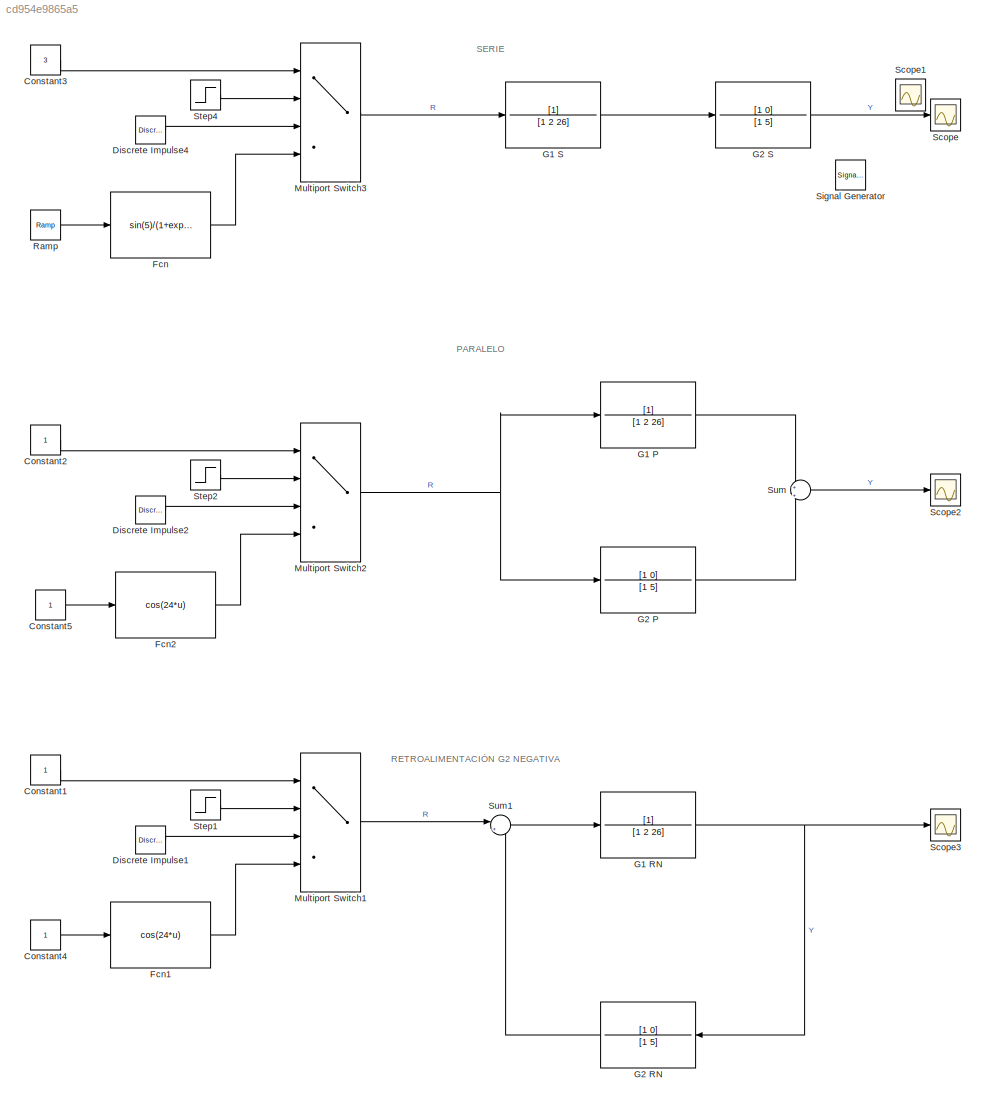
MODEL slx_cd954e9865a5
KIND model
CONFIG AbsTol = auto
CONFIG EnableMultiTasking = off
CONFIG FixedStep = auto
CONFIG MaxStep = auto
CONFIG MinStep = auto
CONFIG RelTol = 1e-3
CONFIG SampleTimeConstraint = Unconstrained
CONFIG Solver = VariableStepAuto
CONFIG SolverName = VariableStepAuto
CONFIG StartTime = 0
CONFIG StopTime = 8
BLOCK [Constant] Constant1
BLOCK [Constant] Constant2
BLOCK [Constant] Constant3
  Value = 3
BLOCK [Constant] Constant4
BLOCK [Constant] Constant5
BLOCK [Reference] Discrete Impulse1  REF=dspsrcs4/Discrete 
Impulse
  Ports = [0, 1]
  SourceBlock = dspsrcs4/Discrete \nImpulse
  SourceProductBaseCode = DS
  SourceProductName = DSP System Toolbox
  SourceType = Discrete Impulse
BLOCK [Reference] Discrete Impulse2  REF=dspsrcs4/Discrete 
Impulse
  Ports = [0, 1]
  SourceBlock = dspsrcs4/Discrete \nImpulse
  SourceProductBaseCode = DS
  SourceProductName = DSP System Toolbox
  SourceType = Discrete Impulse
BLOCK [Reference] Discrete Impulse4  REF=dspsrcs4/Discrete 
Impulse
  Ports = [0, 1]
  SourceBlock = dspsrcs4/Discrete \nImpulse
  SourceProductBaseCode = DS
  SourceProductName = DSP System Toolbox
  SourceType = Discrete Impulse
BLOCK [Fcn] Fcn
  Expr = sin(5)/(1+exp(u))
BLOCK [Fcn] Fcn1
  Expr = cos(24*u)
BLOCK [Fcn] Fcn2
  Expr = cos(24*u)
BLOCK [TransferFcn] G1 P
  Denominator = [1 2 26]
BLOCK [TransferFcn] G1 RN
  Denominator = [1 2 26]
BLOCK [TransferFcn] G1 S
  Denominator = [1 2 26]
BLOCK [TransferFcn] G2 P
  Denominator = [1 5]
  Numerator = [1 0]
BLOCK [TransferFcn] G2 RN
  Denominator = [1 5]
  Numerator = [1 0]
BLOCK [TransferFcn] G2 S
  Denominator = [1 5]
  Numerator = [1 0]
BLOCK [MultiPortSwitch] Multiport Switch1
  DataPortOrder = Specify indices
  InputSameDT = off
  Ports = [4, 1]
  SaturateOnIntegerOverflow = off
BLOCK [MultiPortSwitch] Multiport Switch2
  DataPortOrder = Specify indices
  InputSameDT = off
  Ports = [4, 1]
  SaturateOnIntegerOverflow = off
BLOCK [MultiPortSwitch] Multiport Switch3
  DataPortOrder = Specify indices
  InputSameDT = off
  Ports = [4, 1]
  SaturateOnIntegerOverflow = off
BLOCK [Reference] Ramp  REF=simulink/Sources/Ramp
  Ports = [0, 1]
  SourceBlock = simulink/Sources/Ramp
  SourceProductBaseCode = SL
  SourceProductName = Simulink
  SourceType = Ramp
BLOCK [Scope] Scope
  Floating = off
  NumInputPorts = 1
  Ports = [1]
  ScopeSpecificationString = Simulink.scopes.TimeScopeBlockCfg('CurrentConfiguration', extmgr.ConfigurationSet(extmgr.Configuration('Core','General UI',true),extmgr.Configuration('Core','Source UI',true),extmgr.Configuration('Sources','WiredSimulink',true),extmgr.Configuration('Visuals','Time Domain',true,'SerializedDisplays',{struct('MinYLimReal','-0.01149','MaxYLimReal','0.00864','YLabelReal','','MinYLimMag','0.00000','MaxY...<+1351ch>
BLOCK [Scope] Scope1
  Floating = off
  IOType = viewer
  NumInputPorts = 1
  Ports = []
  ScopeSpecificationString = Simulink.scopes.TimeScopeBlockCfg('CurrentConfiguration', extmgr.ConfigurationSet(extmgr.Configuration('Core','General UI',true),extmgr.Configuration('Core','Source UI',true),extmgr.Configuration('Sources','WiredSimulink',true,'DataLoggingVariableName','ScopeData1'),extmgr.Configuration('Visuals','Time Domain',true,'SerializedDisplays',{struct('MinYLimReal','-0.12612','MaxYLimReal','1.12512','YLab...<+1405ch>
BLOCK [Scope] Scope2
  Floating = off
  NumInputPorts = 1
  Ports = [1]
  ScopeSpecificationString = Simulink.scopes.TimeScopeBlockCfg('CurrentConfiguration', extmgr.ConfigurationSet(extmgr.Configuration('Core','General UI',true),extmgr.Configuration('Core','Source UI',true),extmgr.Configuration('Sources','WiredSimulink',true,'DataLoggingVariableName','ScopeData2'),extmgr.Configuration('Visuals','Time Domain',true,'SerializedDisplays',{struct('MinYLimReal','-0.09206','MaxYLimReal','1.12134','YLab...<+1415ch>
BLOCK [Scope] Scope3
  Floating = off
  NumInputPorts = 1
  Ports = [1]
  ScopeSpecificationString = Simulink.scopes.TimeScopeBlockCfg('CurrentConfiguration', extmgr.ConfigurationSet(extmgr.Configuration('Core','General UI',true),extmgr.Configuration('Core','Source UI',true),extmgr.Configuration('Sources','WiredSimulink',true,'DataLoggingVariableName','ScopeData3'),extmgr.Configuration('Visuals','Time Domain',true,'SerializedDisplays',{struct('MinYLimReal','-0.00723','MaxYLimReal','0.06506','YLab...<+1360ch>
BLOCK [SignalGenerator] Signal Generator
  IOType = siggen
  Ports = [0, 1]
BLOCK [Step] Step1
  SampleTime = 0
  Time = 0
BLOCK [Step] Step2
  SampleTime = 0
  Time = 0
BLOCK [Step] Step4
  SampleTime = 0
  Time = 0
BLOCK [Sum] Sum
  IconShape = round
  InputSameDT = off
  Inputs = +|+
  OutDataTypeStr = Inherit: Inherit via internal rule
  Ports = [2, 1]
  SaturateOnIntegerOverflow = off
BLOCK [Sum] Sum1
  IconShape = round
  InputSameDT = off
  Inputs = |+-
  OutDataTypeStr = Inherit: Inherit via internal rule
  Ports = [2, 1]
  SaturateOnIntegerOverflow = off
ANNOTATION (root): PARALELO
ANNOTATION (root): RETROALIMENTACIÓN G2 NEGATIVA
ANNOTATION (root): SERIE
LINE Constant1:1 -> Multiport Switch1:1
LINE Constant2:1 -> Multiport Switch2:1
LINE Constant3:1 -> Multiport Switch3:1
LINE Constant4:1 -> Fcn1:1
LINE Constant5:1 -> Fcn2:1
LINE Discrete Impulse1:1 -> Multiport Switch1:3
LINE Discrete Impulse2:1 -> Multiport Switch2:3
LINE Discrete Impulse4:1 -> Multiport Switch3:3
LINE Fcn1:1 -> Multiport Switch1:4
LINE Fcn2:1 -> Multiport Switch2:4
LINE Fcn:1 -> Multiport Switch3:4
LINE G1 P:1 -> Sum:1
NET G1 RN:1 -> G2 RN:1, Scope3:1
LINE G1 S:1 -> G2 S:1
LINE G2 P:1 -> Sum:2
LINE G2 RN:1 -> Sum1:2
LINE G2 S:1 -> Scope:1
LINE Multiport Switch1:1 -> Sum1:1
NET Multiport Switch2:1 -> G1 P:1, G2 P:1
LINE Multiport Switch3:1 -> G1 S:1
LINE Ramp:1 -> Fcn:1
LINE Step1:1 -> Multiport Switch1:2
LINE Step2:1 -> Multiport Switch2:2
LINE Step4:1 -> Multiport Switch3:2
LINE Sum1:1 -> G1 RN:1
LINE Sum:1 -> Scope2:1
note: NET lines group one-source signal fan-out (src -> all destinations, sorted); 1:1 wires keep LINE
